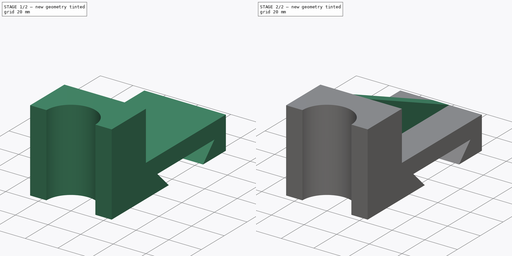
[diagram: build sequence overview — one tinted view per stage of 2, left to right]
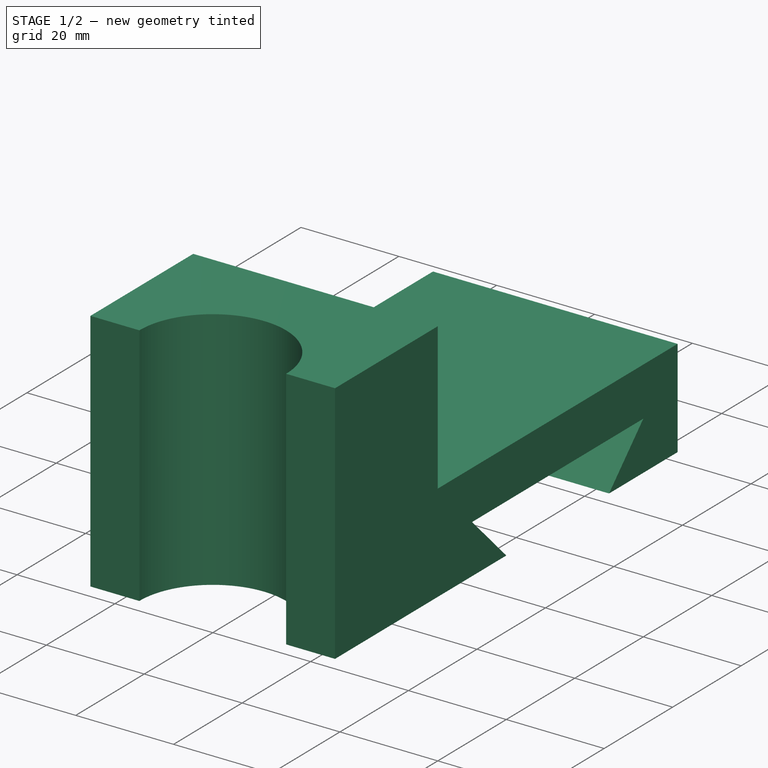
[diagram: stage 1 of 2 — iso view after this stage's code; geometry added in this stage tinted green]
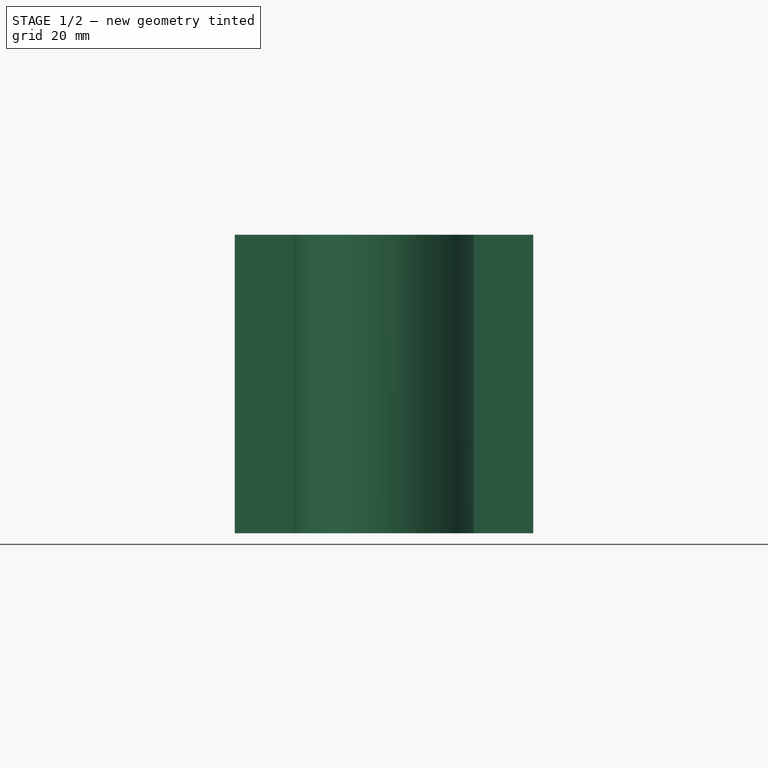
[diagram: stage 1 of 2 — front view after this stage's code; geometry added in this stage tinted green]
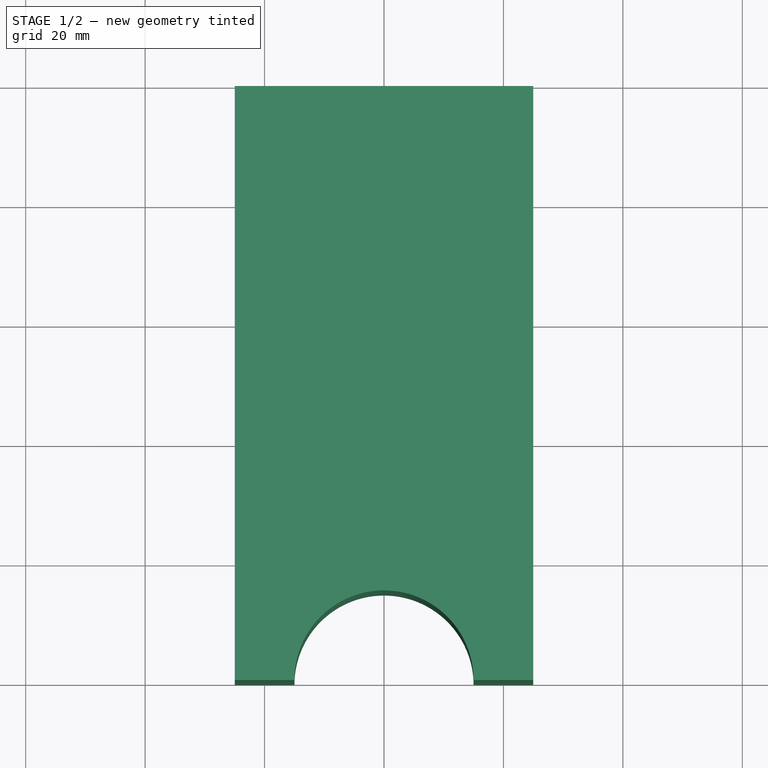
[diagram: stage 1 of 2 — top view after this stage's code; geometry added in this stage tinted green]
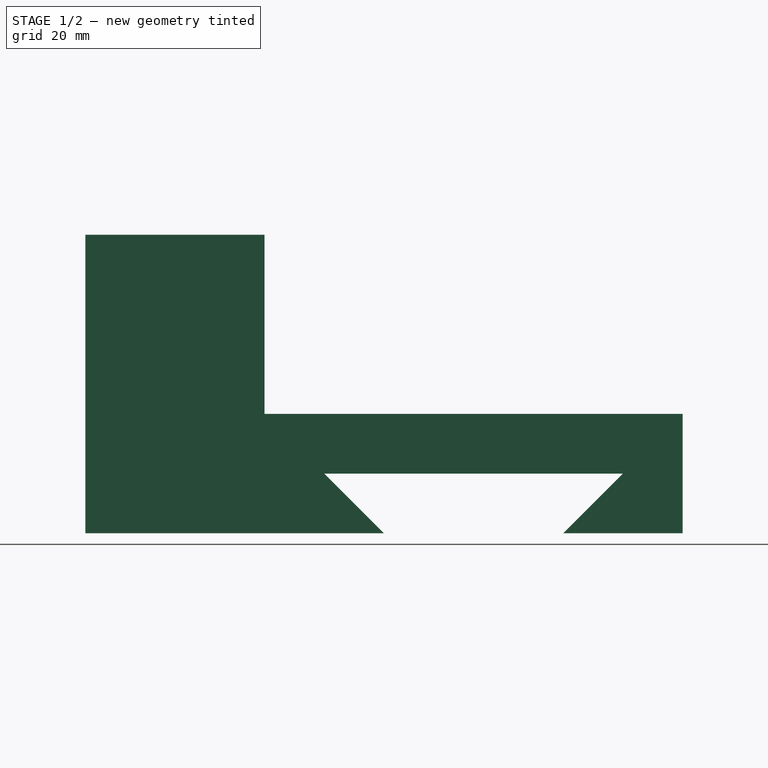
[diagram: stage 1 of 2 — right view after this stage's code; geometry added in this stage tinted green]
FCSTD DOCUMENT  (FreeCAD 0.18R4 (GitTag))
Label: BasicPart5
License: All rights reserved
LicenseURL: http://en.wikipedia.org/wiki/All_rights_reserved
objects: Sketcher::SketchObject×3, PartDesign::Pad×2, PartDesign::Pocket×1, PartDesign::Body×1
note: 10 computed .brp shape members not serialized (recipe doc carries the construction recipe); baked Part::Feature solids carry a one-line shape summary decoded from their .brp

FEATURE [Sketcher::SketchObject] Sketch
  MapMode = 5
  Placement = pos=(0,0,0) rot=(0.57735,0.57735,0.57735;2.0944rad)
  Support = -> [YZ_Plane]
  sketch-geometry (10):
    g0: LineSegment StartX=0 StartY=50 StartZ=0 EndX=0 EndY=0 EndZ=0
    g1: LineSegment StartX=0 StartY=0 StartZ=0 EndX=50 EndY=0 EndZ=0
    g2: LineSegment StartX=50 StartY=0 StartZ=0 EndX=40 EndY=10 EndZ=0
    g3: LineSegment StartX=40 StartY=10 StartZ=0 EndX=90 EndY=10 EndZ=0
    g4: LineSegment StartX=90 StartY=10 StartZ=0 EndX=80 EndY=0 EndZ=0
    g5: LineSegment StartX=80 StartY=0 StartZ=0 EndX=100 EndY=0 EndZ=0
    g6: LineSegment StartX=100 StartY=0 StartZ=0 EndX=100 EndY=20 EndZ=0
    g7: LineSegment StartX=100 StartY=20 StartZ=0 EndX=30 EndY=20 EndZ=0
    g8: LineSegment StartX=30 StartY=20 StartZ=0 EndX=30 EndY=50 EndZ=0
    g9: LineSegment StartX=30 StartY=50 StartZ=0 EndX=0 EndY=50 EndZ=0
  constraints (29):
    c: Coincident(g0,g1)
    c: Coincident(g1,g2)
    c: Coincident(g2,g3)
    c: Coincident(g3,g4)
    c: Coincident(g4,g5)
    c: Coincident(g5,g6)
    c: Coincident(g6,g7)
    c: Coincident(g7,g8)
    c: Coincident(g8,g9)
    c: Coincident(g9,g0)
    c: Coincident(g-1,g0)
    c: PointOnObject(g0,g-2)
    c: Distance(g0) = 50
    c: Distance(g9) = 30
    c: Distance(g8) = 30
    c: PointOnObject(g1,g-1)
    c: PointOnObject(g4,g-1)
    c: PointOnObject(g5,g-1)
    c: Vertical(g6)
    c: Horizontal(g7)
    c: Distance(g6) = 20
    c: DistanceY(g-1,g3) = 10
    c: Horizontal(g3,g2)
    c: Vertical(g8)
    c: Distance(g5) = 20
    c: Distance(g1,g4) = 30
    c: Distance(g0,g5) = 100
    c: Angle(g2,g1) = 0.785398
    c: Angle(g5,g4) = 0.785398
FEATURE [PartDesign::Pad] Pad
  Length = 50
  Length2 = 100
  Midplane = true
  Placement = pos=(0,0,0) rot=(0.57735,0.57735,0.57735;2.0944rad)
  Profile = -> Sketch
  Type = 0
FEATURE [Sketcher::SketchObject] Sketch001
  MapMode = 5
  Placement = pos=(-1.94e-14,2.78e-14,50) rot=(0,0,-1;1.5708rad)
  Support = -> [Pad]
  sketch-geometry (1):
    g0: Circle CenterX=0 CenterY=0 CenterZ=0 NormalX=0 NormalY=0 NormalZ=1 AngleXU=0 Radius=15
  constraints (2):
    c: Coincident(g0,g-1)
    c: Radius(g0) = 15
FEATURE [PartDesign::Pocket] Pocket
  BaseFeature = -> Pad
  Length = 5
  Length2 = 100
  Placement = pos=(0,0,0) rot=(0.57735,0.57735,0.57735;2.0944rad)
  Profile = -> Sketch001
  Type = 1
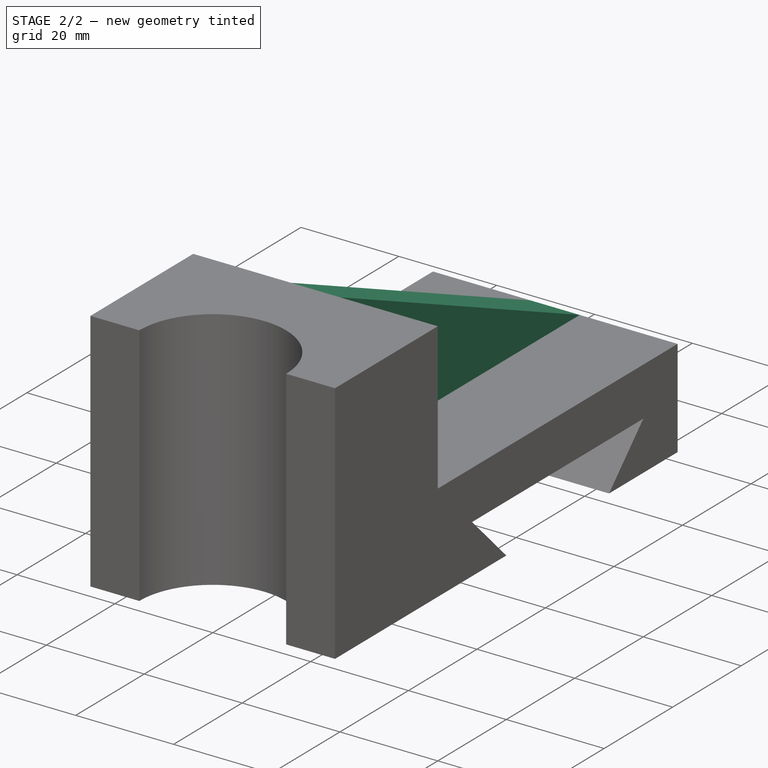
[diagram: stage 2 of 2 — iso view after this stage's code; geometry added in this stage tinted green]
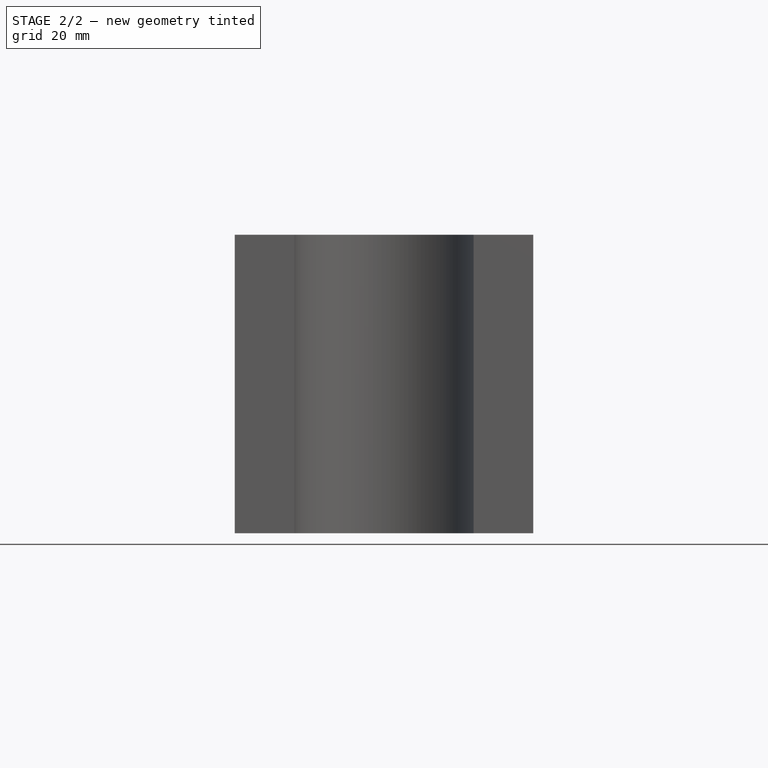
[diagram: stage 2 of 2 — front view after this stage's code; geometry added in this stage tinted green]
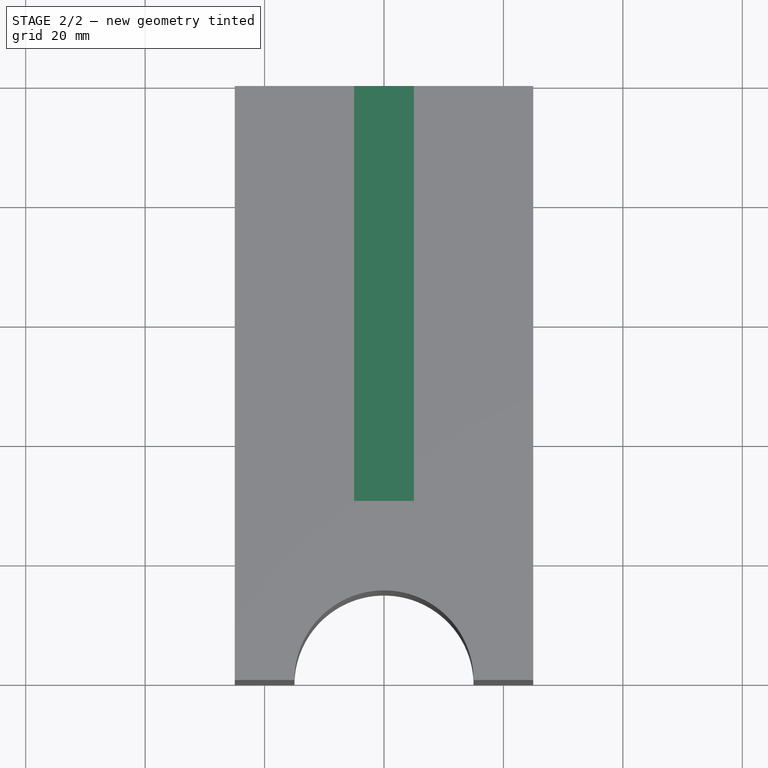
[diagram: stage 2 of 2 — top view after this stage's code; geometry added in this stage tinted green]
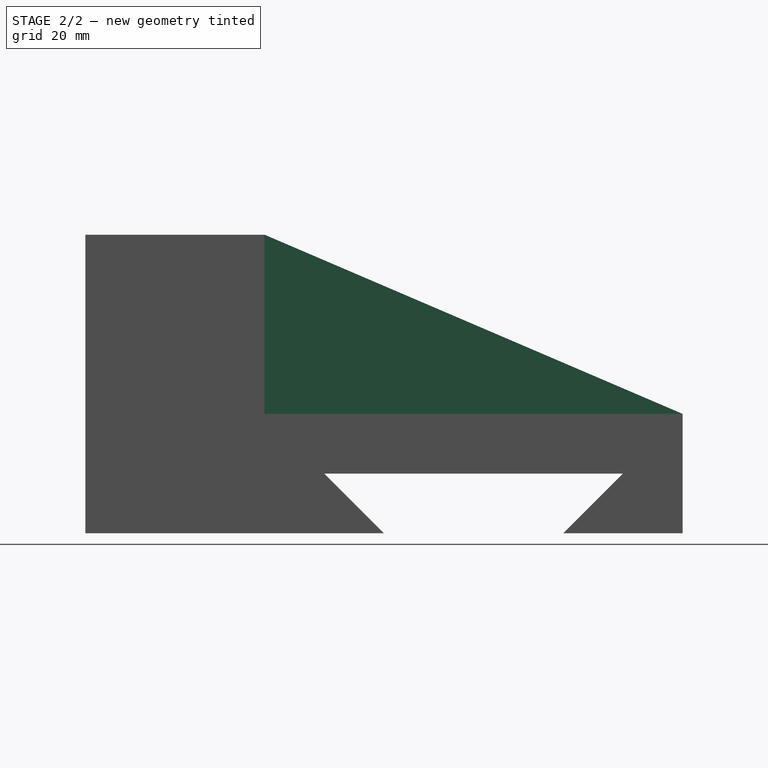
[diagram: stage 2 of 2 — right view after this stage's code; geometry added in this stage tinted green]
FEATURE [Sketcher::SketchObject] Sketch002
  MapMode = 5
  Placement = pos=(0,0,0) rot=(0.57735,0.57735,0.57735;2.0944rad)
  Support = -> [YZ_Plane]
  sketch-geometry (3):
    g0: LineSegment StartX=30 StartY=50 StartZ=0 EndX=30 EndY=20 EndZ=0
    g1: LineSegment StartX=30 StartY=20 StartZ=0 EndX=100 EndY=20 EndZ=0
    g2: LineSegment StartX=100 StartY=20 StartZ=0 EndX=30 EndY=50 EndZ=0
  constraints (9):
    c: Coincident(g0,g1)
    c: Coincident(g1,g2)
    c: Coincident(g2,g0)
    c: Horizontal(g1)
    c: Vertical(g0)
    c: Distance(g1) = 70
    c: Distance(g0) = 30
    c: DistanceX(g-2,g0) = 30
    c: DistanceY(g-1,g1) = 20
FEATURE [PartDesign::Pad] Pad001
  BaseFeature = -> Pocket
  Length = 10
  Length2 = 100
  Midplane = true
  Placement = pos=(0,0,0) rot=(0.57735,0.57735,0.57735;2.0944rad)
  Profile = -> Sketch002
  Type = 0
FEATURE [PartDesign::Body] Body
  Group = -> [Sketch,Pad,Sketch001,Pocket,Sketch002,Pad001]
  Origin = -> Origin
  Tip = -> Pad001
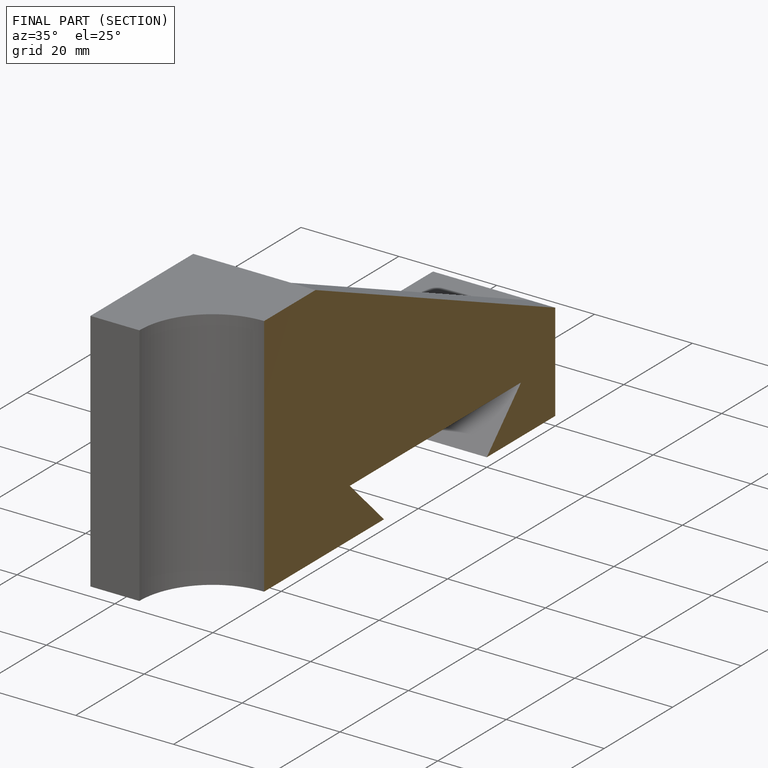
[diagram: finished part — half-section view (interior)]
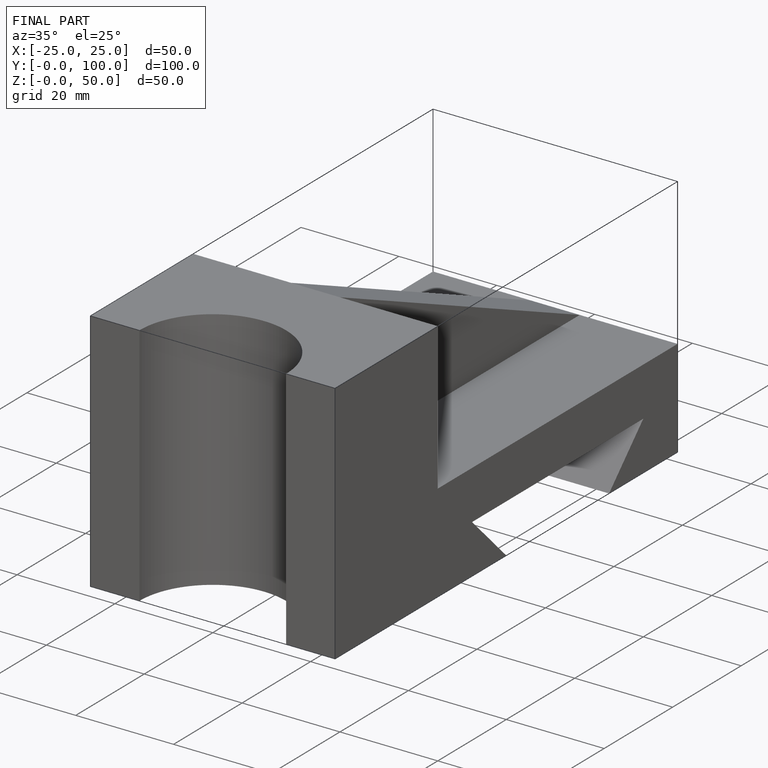
[diagram: finished part — iso view with bounding-box wireframe]
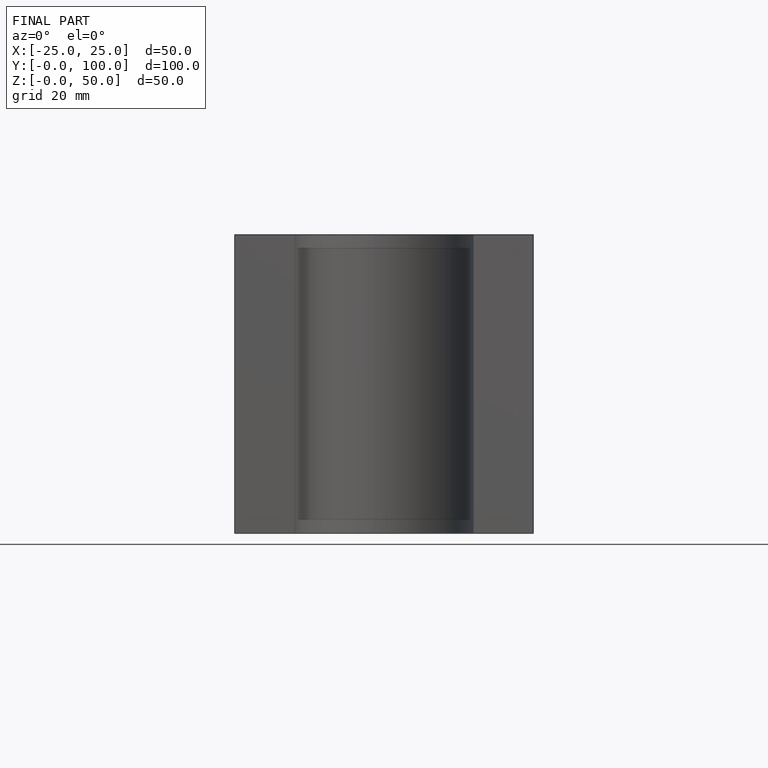
[diagram: finished part — front view with bounding-box wireframe]
